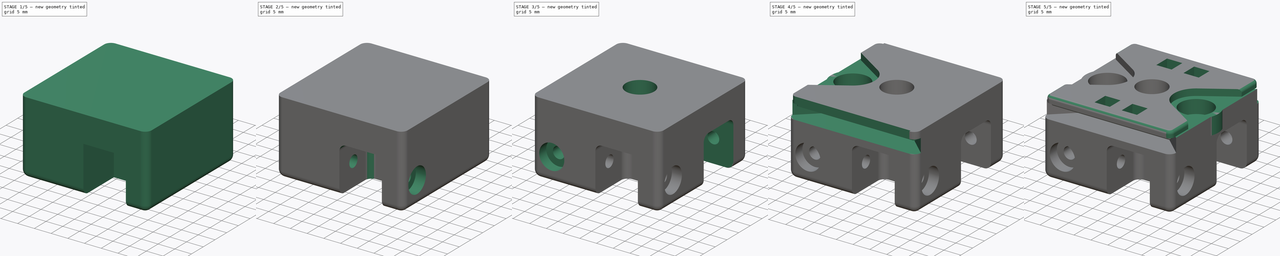
[diagram: build sequence overview — one tinted view per stage of 5, left to right]
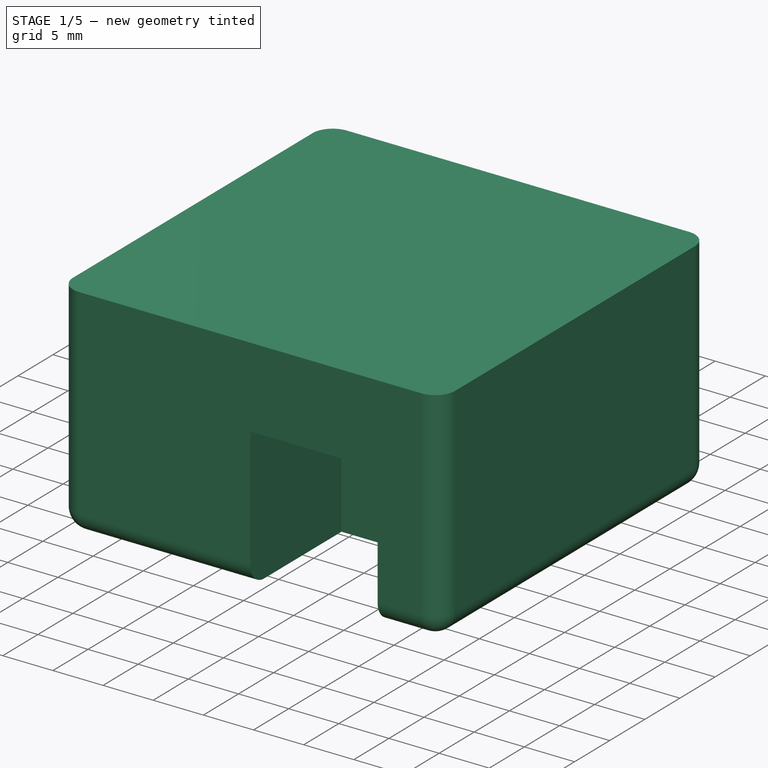
[diagram: stage 1 of 5 — iso view after this stage's code; geometry added in this stage tinted green]
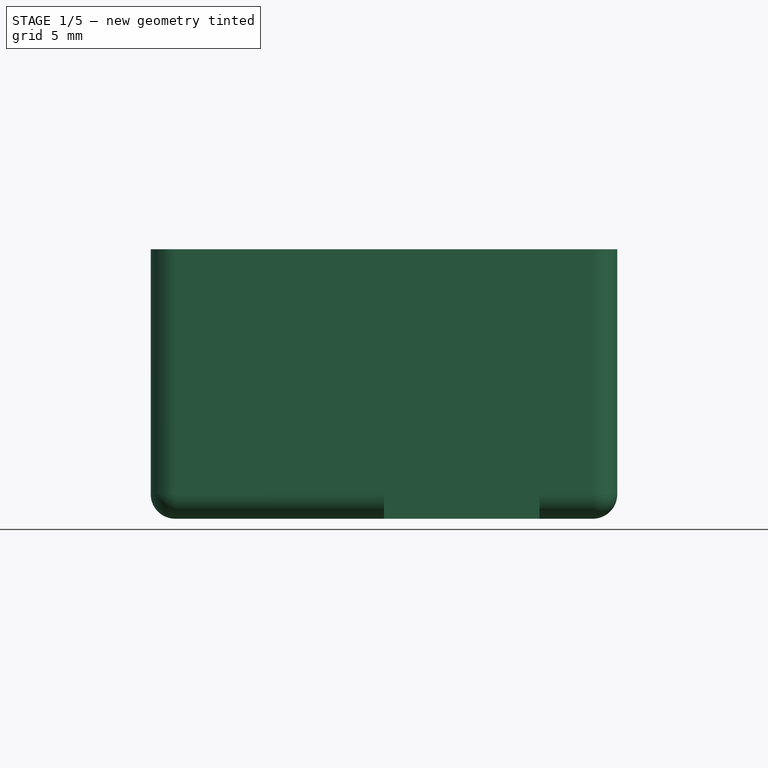
[diagram: stage 1 of 5 — front view after this stage's code; geometry added in this stage tinted green]
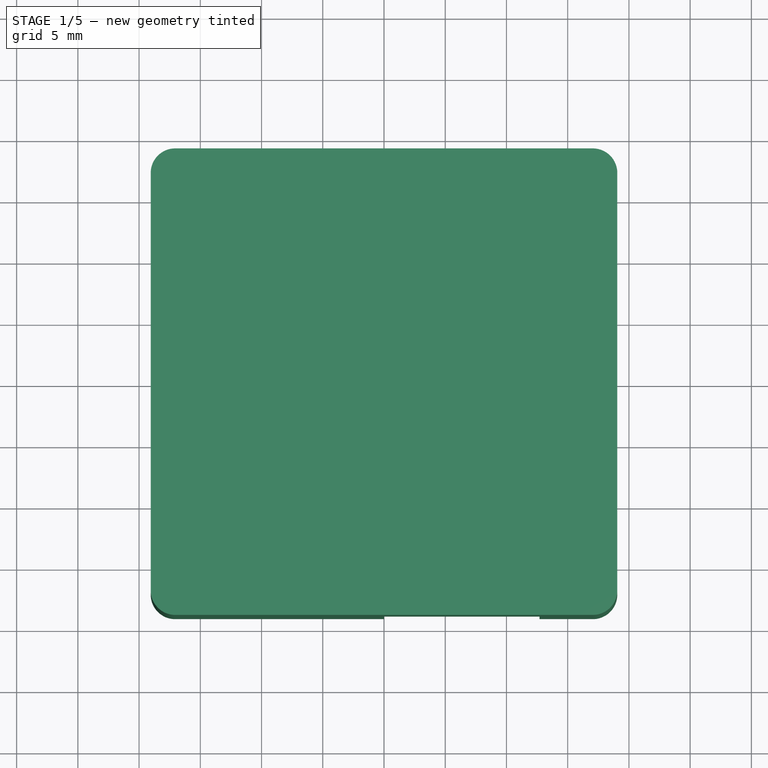
[diagram: stage 1 of 5 — top view after this stage's code; geometry added in this stage tinted green]
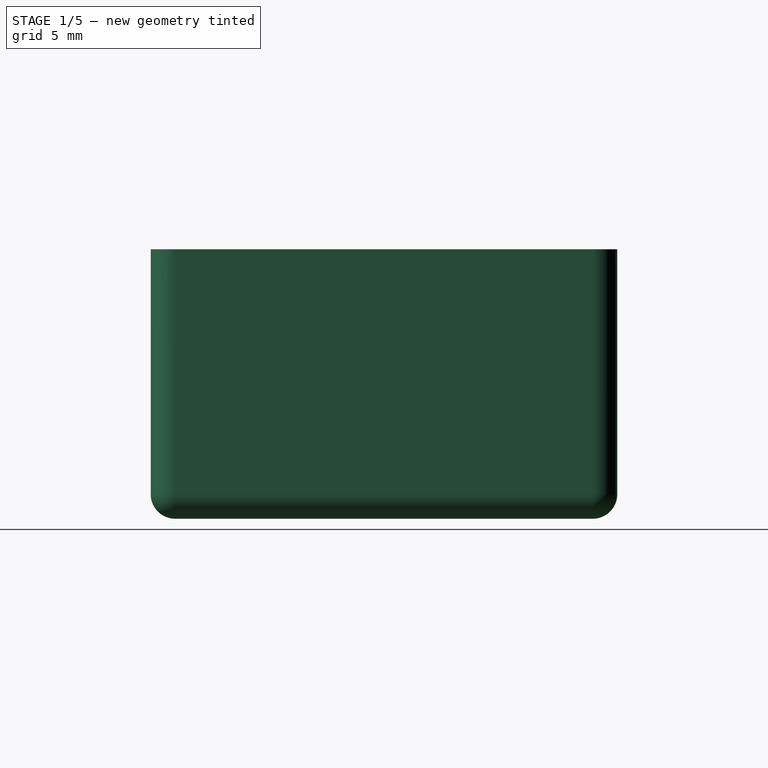
[diagram: stage 1 of 5 — right view after this stage's code; geometry added in this stage tinted green]
FCSTD DOCUMENT  (FreeCAD 1.0R39109 (Git))
Label: Block
License: All rights reserved
LicenseURL: https://en.wikipedia.org/wiki/All_rights_reserved
objects: Sketcher::SketchObject×15, PartDesign::Pocket×12, PartDesign::Fillet×5, PartDesign::Pad×3, PartDesign::PolarPattern×2, PartDesign::Plane×1, PartDesign::Body×1
note: 96 computed .brp shape members not serialized (recipe doc carries the construction recipe); baked Part::Feature solids carry a one-line shape summary decoded from their .brp

FEATURE [Sketcher::SketchObject] Sketch
  ArcFitTolerance = 1e-06
  AttachmentSupport = -> [XY_Plane]
  FullyConstrained = true
  MakeInternals = false
  MapMode = 5
  sketch-geometry (8):
    g0: LineSegment [constr] StartX=0 StartY=0 StartZ=0 EndX=0 EndY=19.05 EndZ=0
    g1: LineSegment [constr] StartX=0 StartY=0 StartZ=0 EndX=19.05 EndY=0 EndZ=0
    g2: LineSegment [constr] StartX=0 StartY=0 StartZ=0 EndX=0 EndY=-19.05 EndZ=0
    g3: LineSegment [constr] StartX=0 StartY=0 StartZ=0 EndX=-19.05 EndY=0 EndZ=0
    g4: LineSegment StartX=-19.05 StartY=19.05 StartZ=0 EndX=-19.05 EndY=-19.05 EndZ=0
    g5: LineSegment StartX=-19.05 StartY=-19.05 StartZ=0 EndX=19.05 EndY=-19.05 EndZ=0
    g6: LineSegment StartX=19.05 StartY=-19.05 StartZ=0 EndX=19.05 EndY=19.05 EndZ=0
    g7: LineSegment StartX=19.05 StartY=19.05 StartZ=0 EndX=-19.05 EndY=19.05 EndZ=0
  constraints (24):
    c: Coincident(g0,g-1)
    c: PointOnObject(g0,g-2)
    c: Coincident(g1,g0)
    c: PointOnObject(g1,g-1)
    c: Coincident(g2,g0)
    c: PointOnObject(g2,g-2)
    c: Coincident(g3,g0)
    c: PointOnObject(g3,g-1)
    c: Equal(g2,g1)
    c: Equal(g2,g3)
    c: Equal(g3,g0)
    c: Coincident(g4,g5)
    c: Coincident(g5,g6)
    c: Coincident(g6,g7)
    c: Coincident(g7,g4)
    c: Vertical(g4)
    c: Vertical(g6)
    c: Horizontal(g5)
    c: Horizontal(g7)
    c: PointOnObject(g3,g4)
    c: PointOnObject(g1,g6)
    c: PointOnObject(g0,g7)
    c: PointOnObject(g2,g5)
    c: DistanceY(g6,g6) = 38.1
FEATURE [PartDesign::Pad] Pad
  Direction = (0,0,1)
  Length = 22
  Length2 = 10
  Profile = -> Sketch
  ReferenceAxis = -> Sketch [N_Axis]
  Refine = true
  Suppressed = false
  Type = 0
FEATURE [Sketcher::SketchObject] Sketch002
  ArcFitTolerance = 1e-06
  FullyConstrained = true
  MakeInternals = false
  MapMode = 5
  Placement = pos=(19.05,0,0) rot=(0.57735,0.57735,0.57735;2.0944rad)
  sketch-geometry (1):
    g0: Circle CenterX=-13.05 CenterY=7 CenterZ=0 NormalX=0 NormalY=0 NormalZ=1 AngleXU=0 Radius=3.75
  constraints (3):
    c: Diameter(g0) = 7.5
    c: Distance(g0,g-3) = 6
    c: Distance(g0,g-4) = 7
FEATURE [Sketcher::SketchObject] Sketch004
  ArcFitTolerance = 1e-06
  AttachmentSupport = -> [Pad]
  FullyConstrained = true
  MakeInternals = false
  MapMode = 5
  Placement = pos=(0,0,0) rot=(1,0,0;3.14159rad)
  sketch-geometry (1):
    g0: Circle CenterX=0 CenterY=0 CenterZ=0 NormalX=0 NormalY=0 NormalZ=1 AngleXU=0 Radius=3.5
  constraints (2):
    c: Diameter(g0) = 7
    c: Coincident(g0,g-1)
FEATURE [PartDesign::Fillet] Fillet
  Base = -> Pad [Edge9,Edge6,Edge3,Edge11,Edge5,Edge8,Edge2,Edge1]
  BaseFeature = -> Pad
  Radius = 2
  Refine = true
  SupportTransform = false
  Suppressed = false
  UseAllEdges = false
FEATURE [PartDesign::Pocket] Pocket003
  BaseFeature = -> Fillet
  Direction = (0,0,1)
  Length = 10
  Length2 = 5
  Profile = -> Sketch004
  ReferenceAxis = -> Sketch004 [N_Axis]
  Refine = true
  Suppressed = false
  Type = 0
FEATURE [Sketcher::SketchObject] Sketch005
  ArcFitTolerance = 1e-06
  AttachmentSupport = -> [Pocket003]
  FullyConstrained = true
  MakeInternals = false
  MapMode = 5
  Placement = pos=(0,0,0) rot=(1,0,0;3.14159rad)
  sketch-geometry (4):
    g0: LineSegment StartX=0 StartY=6.05 StartZ=0 EndX=12.7 EndY=6.05 EndZ=0
    g1: LineSegment StartX=12.7 StartY=6.05 StartZ=0 EndX=12.7 EndY=19.05 EndZ=0
    g2: LineSegment StartX=12.7 StartY=19.05 StartZ=0 EndX=0 EndY=19.05 EndZ=0
    g3: LineSegment StartX=0 StartY=19.05 StartZ=0 EndX=0 EndY=6.05 EndZ=0
  constraints (12):
    c: Coincident(g0,g1)
    c: Coincident(g1,g2)
    c: Coincident(g2,g3)
    c: Coincident(g3,g0)
    c: Horizontal(g0)
    c: Horizontal(g2)
    c: Vertical(g1)
    c: Vertical(g3)
    c: Distance(g1,g3) = 12.7
    c: Distance(g0,g2) = 13
    c: PointOnObject(g0,g-2)
    c: PointOnObject(g1,g-3)
FEATURE [PartDesign::Pocket] Pocket
  BaseFeature = -> Pocket003
  Direction = (0,0,1)
  Length = 14
  Length2 = 5
  Profile = -> Sketch005
  ReferenceAxis = -> Sketch005 [N_Axis]
  Refine = true
  Suppressed = false
  Type = 0
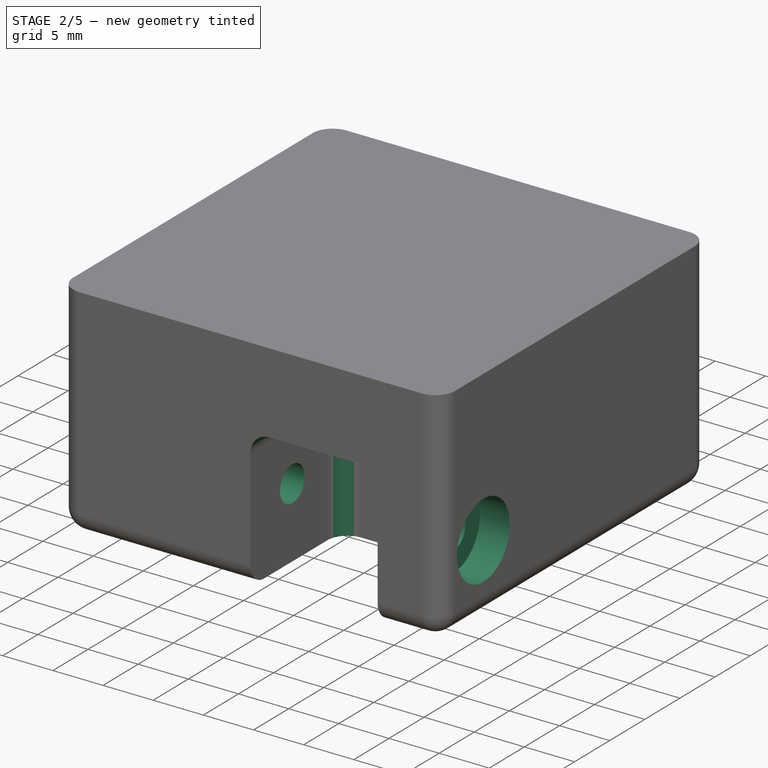
[diagram: stage 2 of 5 — iso view after this stage's code; geometry added in this stage tinted green]
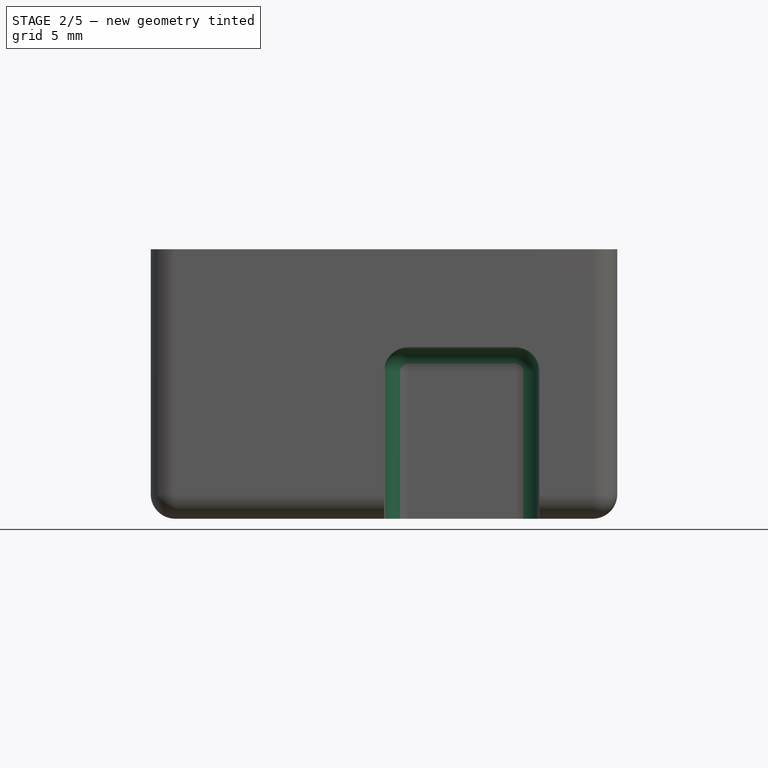
[diagram: stage 2 of 5 — front view after this stage's code; geometry added in this stage tinted green]
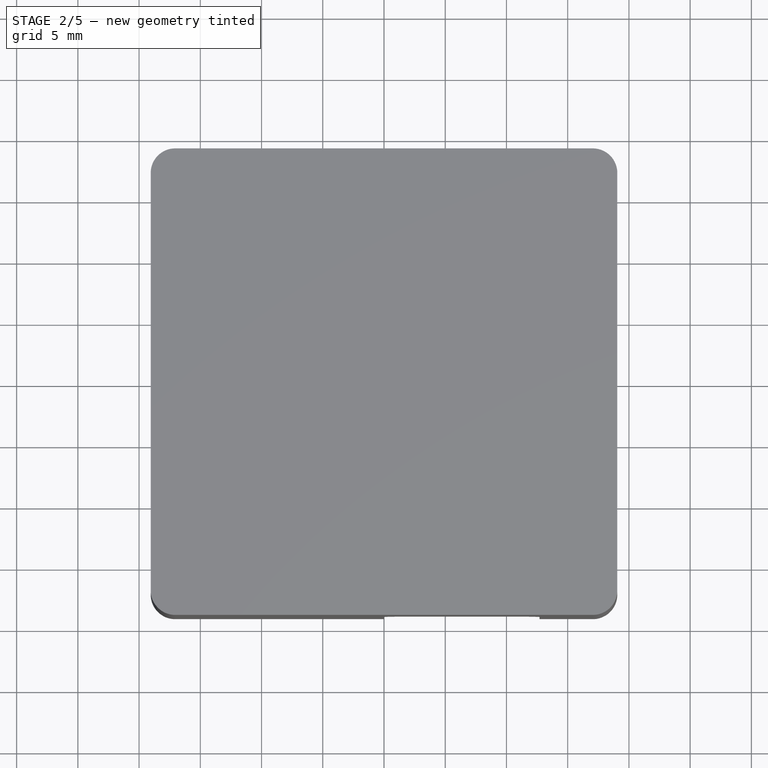
[diagram: stage 2 of 5 — top view after this stage's code; geometry added in this stage tinted green]
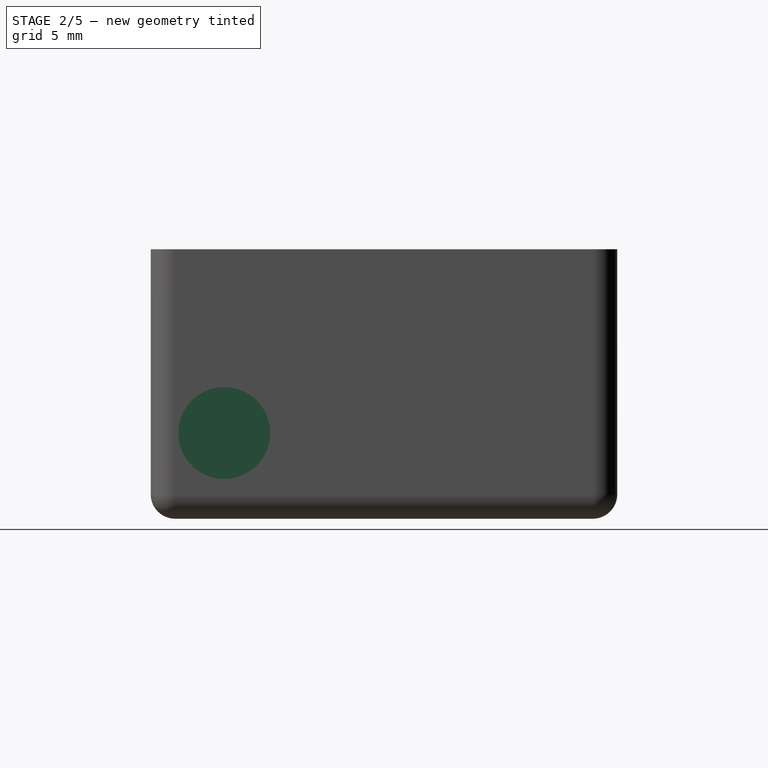
[diagram: stage 2 of 5 — right view after this stage's code; geometry added in this stage tinted green]
FEATURE [Sketcher::SketchObject] Sketch006
  ArcFitTolerance = 1e-06
  AttachmentSupport = -> [Pocket]
  ExternalGeometry = -> [Pocket]
  FullyConstrained = true
  MakeInternals = false
  MapMode = 5
  Placement = pos=(0,0,0) rot=(1,0,0;3.14159rad)
  sketch-geometry (5):
    g0: LineSegment StartX=0 StartY=3.5 StartZ=0 EndX=0 EndY=1.75 EndZ=0
    g1: LineSegment StartX=0 StartY=1.75 StartZ=0 EndX=11.825 EndY=1.75 EndZ=0
    g2: LineSegment StartX=11.825 StartY=3.5 StartZ=0 EndX=0 EndY=3.5 EndZ=0
    g3: ArcOfCircle CenterX=11.825 CenterY=2.625 CenterZ=0 NormalX=0 NormalY=0 NormalZ=1 AngleXU=0 Radius=0.875 StartAngle=4.71239 EndAngle=7.85398
    g4: LineSegment [constr] StartX=12.7 StartY=2.625 StartZ=0 EndX=12.7 EndY=6.05 EndZ=0
  constraints (13):
    c: Coincident(g0,g1)
    c: Coincident(g2,g0)
    c: Vertical(g0)
    c: Horizontal(g1)
    c: Horizontal(g2)
    c: PointOnObject(g0,g-3)
    c: DistanceY(g1,g2) = 1.75
    c: PointOnObject(g0,g-2)
    c: Tangent(g3,g2) = -1.5708
    c: Tangent(g3,g1) = -1.5708
    c: Tangent(g4,g3) = -1.5708
    c: Coincident(g4,g-4)
    c: Vertical(g4)
FEATURE [PartDesign::Pocket] Pocket004
  BaseFeature = -> Pocket
  Direction = (0,0,1)
  Length = 2
  Length2 = 5
  Profile = -> Sketch006
  ReferenceAxis = -> Sketch006 [N_Axis]
  Refine = true
  Suppressed = false
  Type = 0
FEATURE [PartDesign::Pocket] Pocket001
  BaseFeature = -> Pocket004
  Direction = (-1,0,0)
  Length = 3
  Length2 = 5
  Profile = -> Sketch002
  ReferenceAxis = -> Sketch002 [N_Axis]
  Refine = true
  Suppressed = false
  Type = 0
FEATURE [Sketcher::SketchObject] Sketch003
  ArcFitTolerance = 1e-06
  AttachmentSupport = -> [Pocket001]
  ExternalGeometry = -> [Pocket001]
  FullyConstrained = true
  MakeInternals = false
  MapMode = 5
  Placement = pos=(16.05,0,0) rot=(0.57735,0.57735,0.57735;2.0944rad)
  sketch-geometry (1):
    g0: Circle CenterX=-13.05 CenterY=7 CenterZ=0 NormalX=0 NormalY=0 NormalZ=1 AngleXU=0 Radius=1.75
  constraints (2):
    c: Diameter(g0) = 3.5
    c: Coincident(g0,g-3)
FEATURE [PartDesign::Pocket] Pocket002
  BaseFeature = -> Pocket001
  Direction = (-1,0,0)
  Length = 0
  Length2 = 5
  Offset = 5
  Profile = -> Sketch003
  ReferenceAxis = -> Sketch003 [N_Axis]
  Refine = true
  Suppressed = false
  Type = 3
  UpToFace = -> Pocket001 [Face16]
FEATURE [Sketcher::SketchObject] Sketch007
  ArcFitTolerance = 1e-06
  AttachmentSupport = -> [Pocket002]
  ExternalGeometry = -> [Pocket002]
  FullyConstrained = true
  MakeInternals = false
  MapMode = 5
  Placement = pos=(0,0,14) rot=(1,0,0;3.14159rad)
  sketch-geometry (3):
    g0: LineSegment [constr] StartX=12.7 StartY=14.8 StartZ=0 EndX=6.35 EndY=14.8 EndZ=0
    g1: LineSegment [constr] StartX=6.35 StartY=14.8 StartZ=0 EndX=0 EndY=14.8 EndZ=0
    g2: Circle CenterX=6.35002 CenterY=11.8 CenterZ=0 NormalX=0 NormalY=0 NormalZ=1 AngleXU=0 Radius=3
  constraints (9):
    c: Coincident(g0,g-3)
    c: Horizontal(g0)
    c: Coincident(g1,g0)
    c: PointOnObject(g1,g-2)
    c: Horizontal(g1)
    c: Equal(g0,g1)
    c: PointOnObject(g0,g2)
    c: Diameter(g2) = 6
    c: Tangent(g2,g1)
FEATURE [PartDesign::Pocket] Pocket005
  BaseFeature = -> Pocket002
  Direction = (0,0,1)
  Length = 1
  Length2 = 5
  Profile = -> Sketch007
  ReferenceAxis = -> Sketch007 [N_Axis]
  Refine = true
  Suppressed = false
  Type = 0
FEATURE [PartDesign::Fillet] Fillet001
  Base = -> Pocket005 [Edge54,Edge52,Edge51,Edge55,Edge57]
  BaseFeature = -> Pocket005
  Radius = 2
  Refine = true
  SupportTransform = false
  Suppressed = false
  UseAllEdges = false
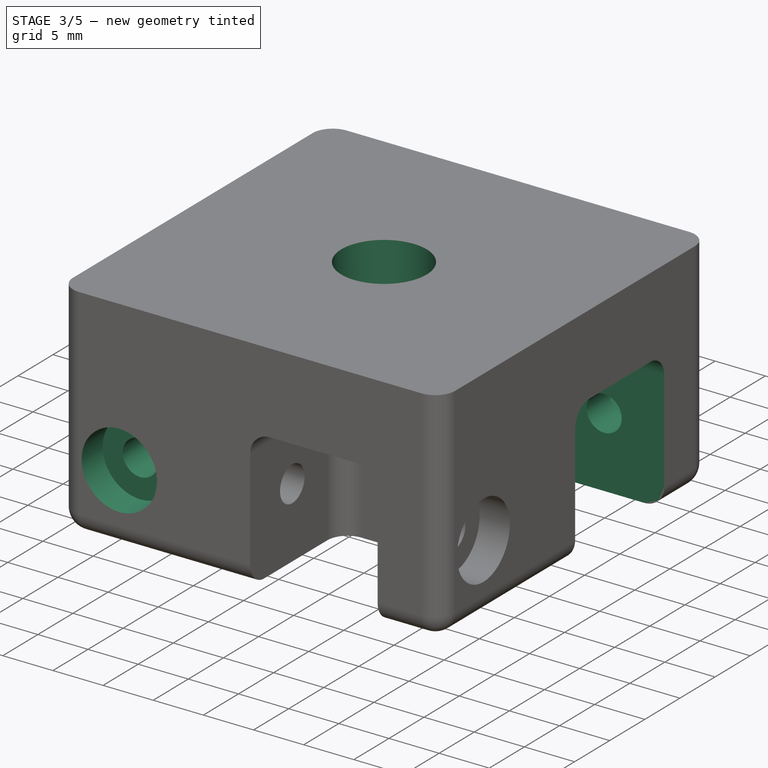
[diagram: stage 3 of 5 — iso view after this stage's code; geometry added in this stage tinted green]
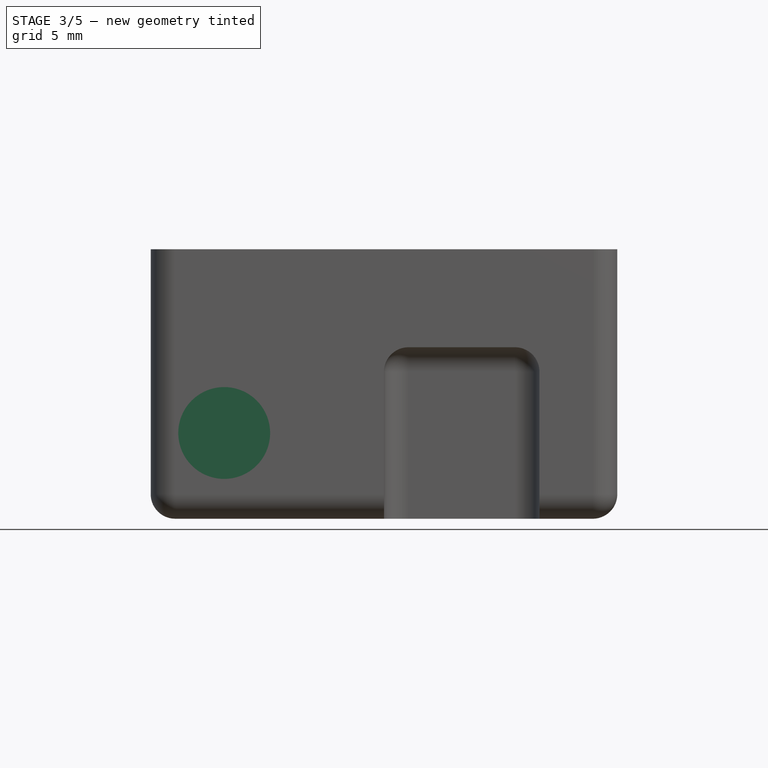
[diagram: stage 3 of 5 — front view after this stage's code; geometry added in this stage tinted green]
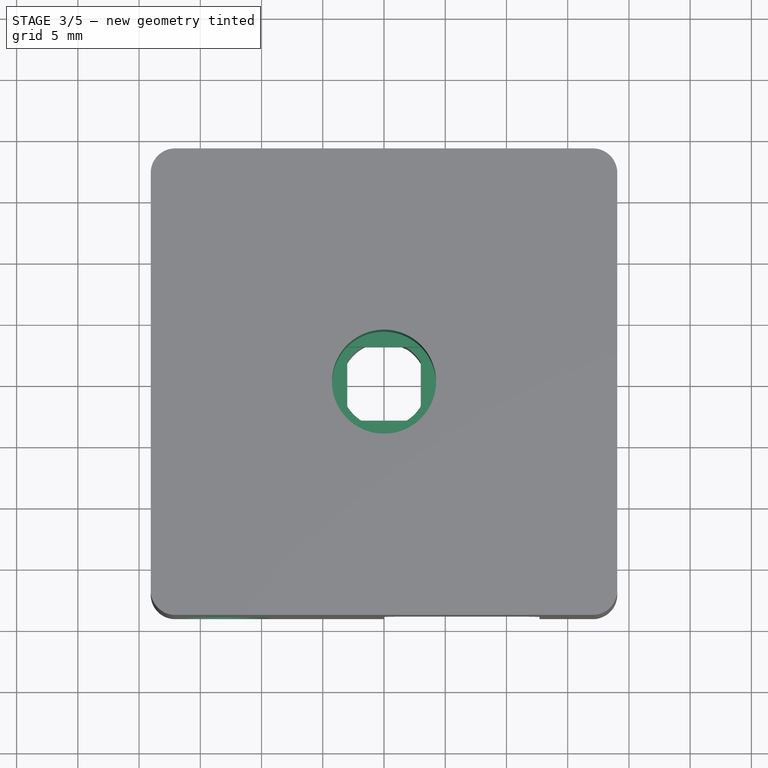
[diagram: stage 3 of 5 — top view after this stage's code; geometry added in this stage tinted green]
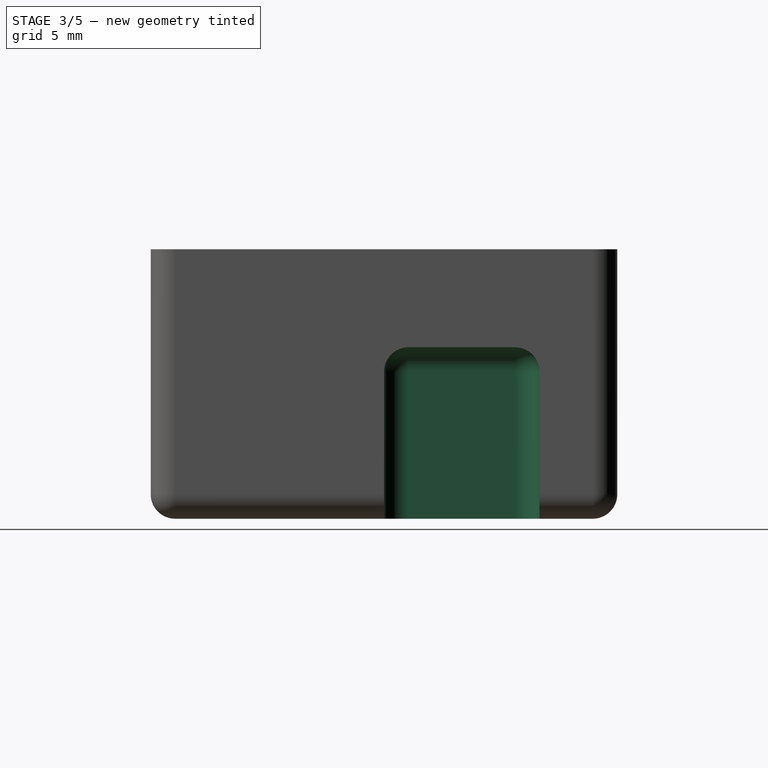
[diagram: stage 3 of 5 — right view after this stage's code; geometry added in this stage tinted green]
FEATURE [PartDesign::Fillet] Fillet002
  Base = -> Fillet001 [Edge22]
  BaseFeature = -> Fillet001
  Radius = 0.5
  Refine = true
  SupportTransform = false
  Suppressed = false
  UseAllEdges = false
FEATURE [PartDesign::PolarPattern] PolarPattern
  Angle = 360
  Axis = -> Z_Axis
  BaseFeature = -> Fillet002
  Mode = 0
  Occurrences = 4
  Offset = 120
  Originals = -> [Fillet002,Pocket,Pocket004,Pocket001,Pocket002,Pocket005,Fillet001]
  Refine = true
  Suppressed = false
  TransformMode = 0
FEATURE [Sketcher::SketchObject] Sketch009
  ArcFitTolerance = 1e-06
  AttachmentSupport = -> [PolarPattern]
  FullyConstrained = true
  MakeInternals = false
  MapMode = 5
  Placement = pos=(0,0,22) rot=(0,0,1;0rad)
  sketch-geometry (1):
    g0: Circle CenterX=0 CenterY=0 CenterZ=0 NormalX=0 NormalY=0 NormalZ=1 AngleXU=0 Radius=4.25
  constraints (2):
    c: Diameter(g0) = 8.5
    c: Coincident(g0,g-1)
FEATURE [Sketcher::SketchObject] Sketch012
  ArcFitTolerance = 1e-06
  FullyConstrained = true
  MakeInternals = false
  MapMode = 5
  Placement = pos=(0,0,22) rot=(0,0,1;0rad)
  sketch-geometry (21):
    g0: LineSegment StartX=-17.05 StartY=-18.55 StartZ=0 EndX=17.05 EndY=-18.55 EndZ=0
    g1: ArcOfCircle CenterX=-17.05 CenterY=-17.05 CenterZ=0 NormalX=0 NormalY=0 NormalZ=1 AngleXU=0 Radius=1.5 StartAngle=3.14159 EndAngle=4.71239
    g2: LineSegment [constr] StartX=-19.05 StartY=0 StartZ=0 EndX=-18.55 EndY=0 EndZ=0
    g3: LineSegment [constr] StartX=-1.1e-15 StartY=-19.05 StartZ=0 EndX=-1.1e-15 EndY=-18.55 EndZ=0
    g4: LineSegment [constr] StartX=-18.55 StartY=-17.05 StartZ=0 EndX=-19.05 EndY=-17.05 EndZ=0
    g5: LineSegment [constr] StartX=-17.05 StartY=-18.55 StartZ=0 EndX=-17.05 EndY=-19.05 EndZ=0
    g6: LineSegment [constr] StartX=-19.05 StartY=17.05 StartZ=0 EndX=-18.55 EndY=17.05 EndZ=0
    g7: ArcOfCircle CenterX=-17.05 CenterY=17.05 CenterZ=0 NormalX=0 NormalY=0 NormalZ=1 AngleXU=0 Radius=1.5 StartAngle=1.5708 EndAngle=3.14159
    g8: LineSegment StartX=-17.05 StartY=19.05 StartZ=0 EndX=-17.05 EndY=18.55 EndZ=0
    g9: ArcOfCircle CenterX=-17.05 CenterY=17.05 CenterZ=0 NormalX=0 NormalY=0 NormalZ=1 AngleXU=0 Radius=2 StartAngle=1.5708 EndAngle=3.14159
    g10: ArcOfCircle CenterX=-17.05 CenterY=-17.05 CenterZ=0 NormalX=0 NormalY=0 NormalZ=1 AngleXU=0 Radius=2 StartAngle=3.14159 EndAngle=4.71239
    g11: LineSegment StartX=-19.05 StartY=-17.05 StartZ=0 EndX=-19.05 EndY=17.05 EndZ=0
    g12: LineSegment StartX=17.05 StartY=-19.05 StartZ=0 EndX=-17.05 EndY=-19.05 EndZ=0
    g13: LineSegment StartX=17.05 StartY=-19.05 StartZ=0 EndX=17.05 EndY=-18.55 EndZ=0
    g14: LineSegment [constr] StartX=-4.25 StartY=0 StartZ=0 EndX=-6.55 EndY=0 EndZ=0
    g15: LineSegment StartX=-18.55 StartY=17.05 StartZ=0 EndX=-18.55 EndY=11.25 EndZ=0
    g16: LineSegment StartX=-18.55 StartY=-17.05 StartZ=0 EndX=-18.55 EndY=-11.25 EndZ=0
    g17: LineSegment [constr] StartX=-18.55 StartY=11.25 StartZ=0 EndX=-18.55 EndY=-11.25 EndZ=0
    g18: ArcOfCircle CenterX=-13.05 CenterY=0 CenterZ=0 NormalX=0 NormalY=0 NormalZ=1 AngleXU=0 Radius=6.5 StartAngle=5.28271 EndAngle=7.28366
    g19: LineSegment StartX=-18.55 StartY=11.25 StartZ=0 EndX=-9.54065 EndY=5.47124 EndZ=0
    g20: LineSegment StartX=-9.54065 StartY=-5.47124 StartZ=0 EndX=-18.55 EndY=-11.25 EndZ=0
  constraints (53):
    c: Horizontal(g0)
    c: Symmetric(g-3,g-3,g2)
    c: Symmetric(g6,g1,g2)
    c: Horizontal(g2)
    c: Distance(g2,g2) = 0.5
    c: Tangent(g1,g0) = -1.5708
    c: Symmetric(g-5,g-5,g3)
    c: Symmetric(g0,g0,g3)
    c: Vertical(g3)
    c: Equal(g3,g2)
    c: Coincident(g4,g-4)
    c: Coincident(g5,g0)
    c: Coincident(g5,g-5)
    c: Coincident(g6,g-6)
    c: Coincident(g7,g6) = -1.5708
    c: Coincident(g8,g-6)
    c: Coincident(g8,g7)
    c: Perpendicular(g7,g8)
    c: Coincident(g-6,g7)
    c: Coincident(g9,g7)
    c: Coincident(g9,g8)
    c: Coincident(g10,g1)
    c: Coincident(g10,g4)
    c: Coincident(g10,g5)
    c: Coincident(g11,g4)
    c: Coincident(g11,g9)
    c: Coincident(g12,g-5)
    c: Coincident(g12,g5)
    c: Coincident(g13,g12)
    c: Coincident(g13,g0)
    c: PointOnObject(g14,g-7)
    c: PointOnObject(g14,g-1)
    c: Horizontal(g14)
    c: Coincident(g15,g6)
    c: Vertical(g15)
    c: Coincident(g16,g1)
    c: Vertical(g16)
    c: Equal(g16,g15)
    c: Vertical(g5)
    c: Coincident(g17,g15)
    c: Coincident(g17,g16)
    c: DistanceY(g17,g17) = 22.5
    c: PointOnObject(g18,g-1)
    c: Coincident(g19,g15)
    c: Coincident(g20,g16)
    c: Tangent(g20,g18) = 1.5708
    c: Tangent(g19,g18) = 1.5708
    c: PointOnObject(g14,g18)
    c: Radius(g18) = 6.5
    c: Coincident(g4,g1)
    c: Horizontal(g4)
    c: PointOnObject(g9,g6)
    c: Distance(g14,g11) = 12.5
FEATURE [PartDesign::Pocket] Pocket006
  BaseFeature = -> PolarPattern
  Direction = (0,0,-1)
  Length = 10
  Length2 = 5
  Profile = -> Sketch009
  ReferenceAxis = -> Sketch009 [N_Axis]
  Refine = true
  Suppressed = false
  Type = 0
FEATURE [Sketcher::SketchObject] Sketch015
  ArcFitTolerance = 1e-06
  AttachmentSupport = -> [Pocket006]
  ExternalGeometry = -> [Pocket006]
  FullyConstrained = true
  MakeInternals = false
  MapMode = 5
  Placement = pos=(0,0,12) rot=(0,0,1;0rad)
  sketch-geometry (4):
    g0: LineSegment StartX=-3.0052 StartY=3.0052 StartZ=0 EndX=-3.0052 EndY=-3.0052 EndZ=0
    g1: LineSegment StartX=-3.0052 StartY=-3.0052 StartZ=0 EndX=3.0052 EndY=-3.0052 EndZ=0
    g2: LineSegment StartX=3.0052 StartY=-3.0052 StartZ=0 EndX=3.0052 EndY=3.0052 EndZ=0
    g3: LineSegment StartX=3.0052 StartY=3.0052 StartZ=0 EndX=-3.0052 EndY=3.0052 EndZ=0
  constraints (12):
    c: Coincident(g0,g1)
    c: Coincident(g1,g2)
    c: Coincident(g2,g3)
    c: Coincident(g3,g0)
    c: Vertical(g0)
    c: Vertical(g2)
    c: Horizontal(g1)
    c: Horizontal(g3)
    c: Equal(g0,g3)
    c: PointOnObject(g0,g-3)
    c: PointOnObject(g1,g-3)
    c: PointOnObject(g2,g-3)
FEATURE [PartDesign::Pocket] Pocket012
  BaseFeature = -> Pocket006
  Direction = (0,0,-1)
  Length = 0
  Length2 = 5
  Profile = -> Sketch015
  ReferenceAxis = -> Sketch015 [N_Axis]
  Refine = true
  Suppressed = false
  Type = 3
  UpToFace = -> Pocket006 [Face105]
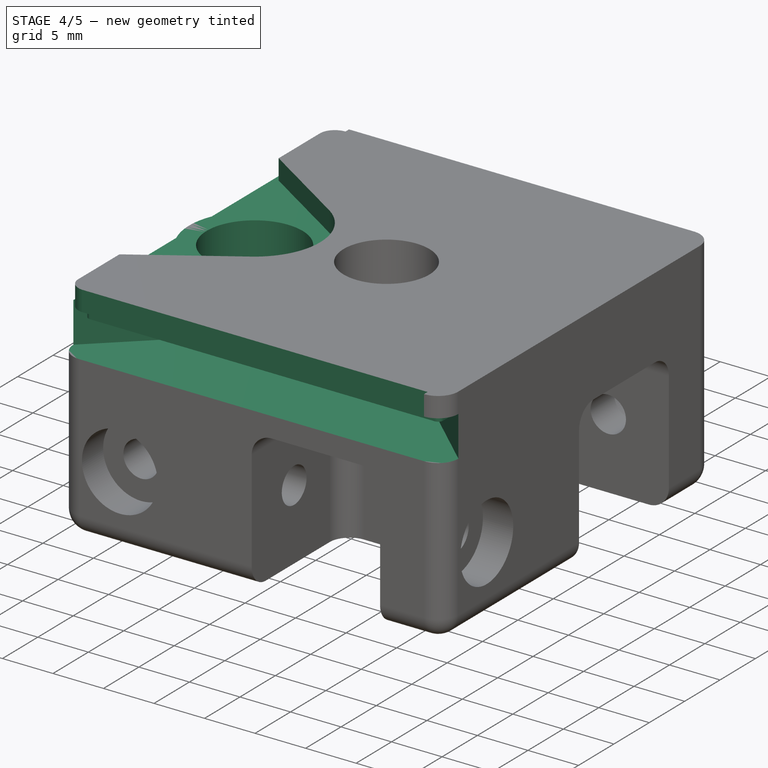
[diagram: stage 4 of 5 — iso view after this stage's code; geometry added in this stage tinted green]
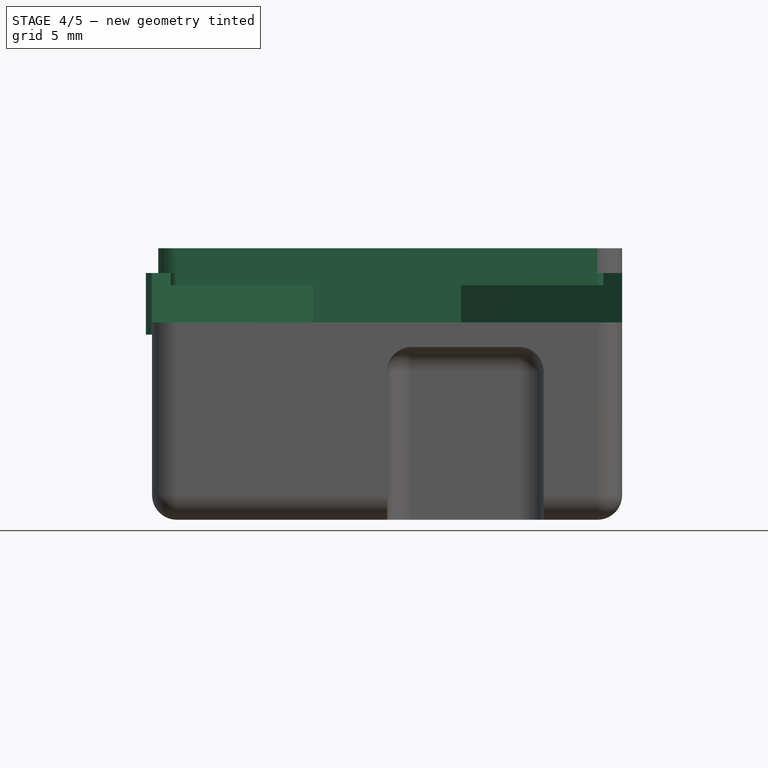
[diagram: stage 4 of 5 — front view after this stage's code; geometry added in this stage tinted green]
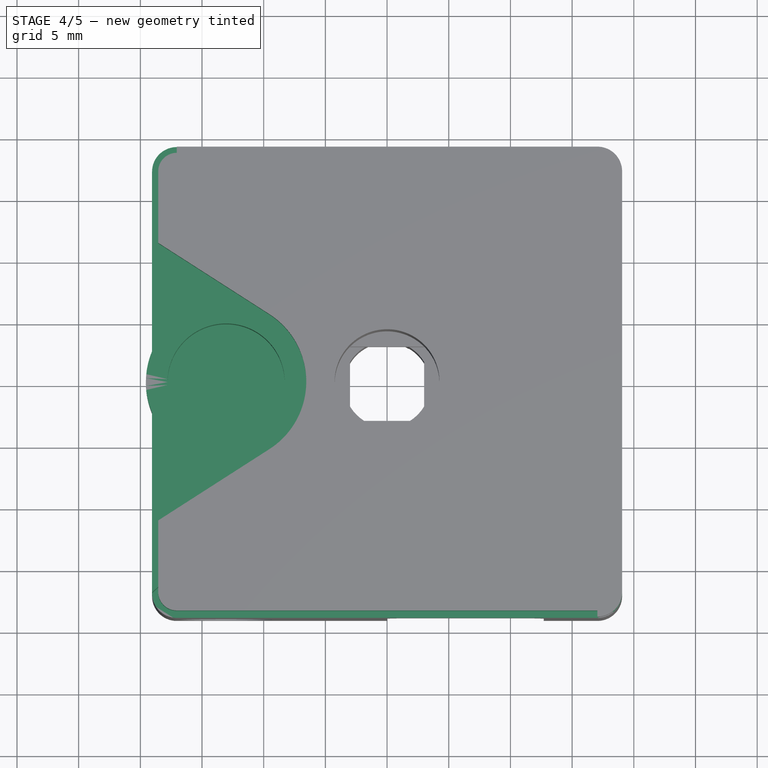
[diagram: stage 4 of 5 — top view after this stage's code; geometry added in this stage tinted green]
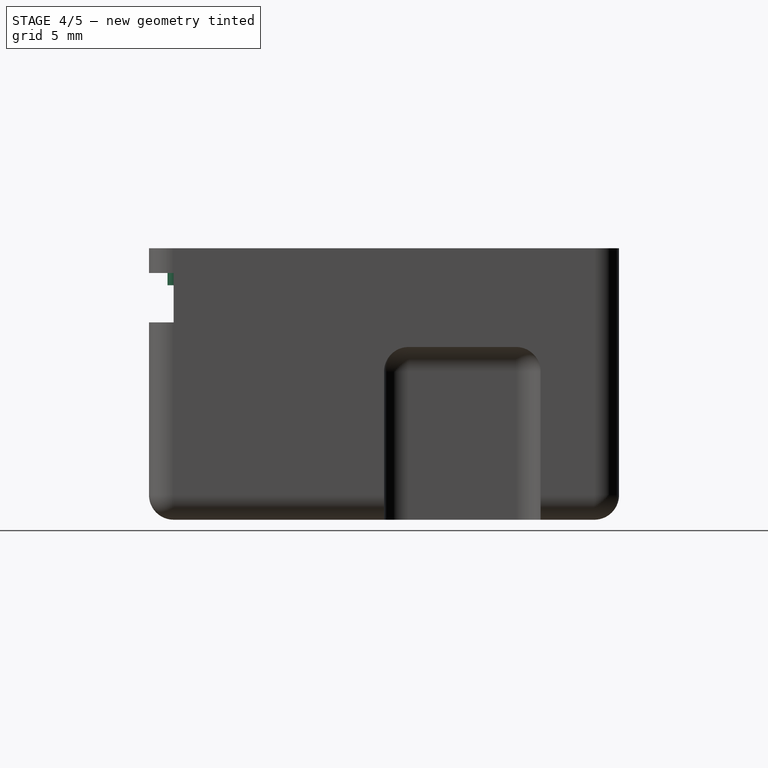
[diagram: stage 4 of 5 — right view after this stage's code; geometry added in this stage tinted green]
FEATURE [PartDesign::Plane] DatumPlane
  AttachmentOffset = pos=(0,0,6) rot=(0,0,1;0rad)
  AttachmentSupport = -> [Pocket012]
  Length = 60
  MapMode = 5
  Placement = pos=(0,0,16) rot=(0,1,0;3.14159rad)
  ResizeMode = 0
  Width = 60
FEATURE [Sketcher::SketchObject] Sketch010
  ArcFitTolerance = 1e-06
  AttachmentSupport = -> [DatumPlane]
  FullyConstrained = true
  MakeInternals = false
  MapMode = 5
  Placement = pos=(0,0,16) rot=(0,1,0;3.14159rad)
  sketch-geometry (6):
    g0: LineSegment StartX=19.05 StartY=-19.05 StartZ=0 EndX=-19.05 EndY=-19.05 EndZ=0
    g1: LineSegment StartX=6 StartY=-5.05 StartZ=0 EndX=-6 EndY=-5.05 EndZ=0
    g2: LineSegment StartX=19.05 StartY=-17.05 StartZ=0 EndX=6 EndY=-5.05 EndZ=0
    g3: LineSegment StartX=-19.05 StartY=-17.05 StartZ=0 EndX=-6 EndY=-5.05 EndZ=0
    g4: LineSegment StartX=-19.05 StartY=-17.05 StartZ=0 EndX=-19.05 EndY=-19.05 EndZ=0
    g5: LineSegment StartX=19.05 StartY=-19.05 StartZ=0 EndX=19.05 EndY=-17.05 EndZ=0
  constraints (15):
    c: Symmetric(g-3,g-3,g0)
    c: Horizontal(g0)
    c: PointOnObject(g0,g-5)
    c: Horizontal(g1)
    c: DistanceX(g1,g1) = 12
    c: Coincident(g2,g-7)
    c: Coincident(g2,g1)
    c: Coincident(g3,g-6)
    c: Coincident(g3,g1)
    c: Coincident(g4,g3)
    c: Coincident(g4,g0)
    c: Coincident(g5,g0)
    c: Coincident(g5,g2)
    c: Equal(g2,g3)
    c: Distance(g1,g0) = 14
FEATURE [PartDesign::Pocket] Pocket008
  BaseFeature = -> Pocket012
  Direction = (0,0,1)
  Length = 4
  Length2 = 5
  Profile = -> Sketch010
  ReferenceAxis = -> Sketch010 [N_Axis]
  Refine = true
  Suppressed = false
  Type = 0
FEATURE [Sketcher::SketchObject] Sketch011
  ArcFitTolerance = 1e-06
  AttachmentSupport = -> [Pocket008]
  FullyConstrained = true
  MakeInternals = false
  MapMode = 5
  Placement = pos=(0,0,22) rot=(0,0,1;0rad)
  sketch-geometry (9):
    g0: LineSegment StartX=-6.25 StartY=-10.75 StartZ=0 EndX=-6.25 EndY=-15.25 EndZ=0
    g1: LineSegment StartX=-6.25 StartY=-15.25 StartZ=0 EndX=-1.75 EndY=-15.25 EndZ=0
    g2: LineSegment StartX=-1.75 StartY=-15.25 StartZ=0 EndX=-1.75 EndY=-10.75 EndZ=0
    g3: LineSegment StartX=-1.75 StartY=-10.75 StartZ=0 EndX=-6.25 EndY=-10.75 EndZ=0
    g4: LineSegment StartX=1.75 StartY=-10.75 StartZ=0 EndX=1.75 EndY=-15.25 EndZ=0
    g5: LineSegment StartX=1.75 StartY=-15.25 StartZ=0 EndX=6.25 EndY=-15.25 EndZ=0
    g6: LineSegment StartX=6.25 StartY=-15.25 StartZ=0 EndX=6.25 EndY=-10.75 EndZ=0
    g7: LineSegment StartX=6.25 StartY=-10.75 StartZ=0 EndX=1.75 EndY=-10.75 EndZ=0
    g8: LineSegment [constr] StartX=-1.75 StartY=-15.25 StartZ=0 EndX=1.75 EndY=-15.25 EndZ=0
  constraints (25):
    c: Coincident(g0,g1)
    c: Coincident(g1,g2)
    c: Coincident(g2,g3)
    c: Coincident(g3,g0)
    c: Vertical(g0)
    c: Vertical(g2)
    c: Horizontal(g1)
    c: Horizontal(g3)
    c: Equal(g3,g0)
    c: Coincident(g4,g5)
    c: Coincident(g5,g6)
    c: Coincident(g6,g7)
    c: Coincident(g7,g4)
    c: Vertical(g4)
    c: Vertical(g6)
    c: Horizontal(g5)
    c: Horizontal(g7)
    c: Coincident(g8,g1)
    c: Coincident(g8,g4)
    c: Symmetric(g1,g4,g-2)
    c: Equal(g3,g7)
    c: Equal(g4,g2)
    c: DistanceX(g1,g1) = 4.5
    c: DistanceX(g8,g8) = 3.5
    c: Distance(g-1,g7) = 10.75
FEATURE [PartDesign::Pocket] Pocket010
  BaseFeature = -> Pocket008
  Direction = (0,0,-1)
  Length = 2
  Length2 = 5
  Profile = -> Sketch012
  ReferenceAxis = -> Sketch012 [N_Axis]
  Refine = true
  Suppressed = false
  Type = 0
FEATURE [Sketcher::SketchObject] Sketch013
  ArcFitTolerance = 1e-06
  AttachmentSupport = -> [Pocket010]
  ExternalGeometry = -> [Pocket010]
  FullyConstrained = true
  MakeInternals = false
  MapMode = 5
  Placement = pos=(0,0,20) rot=(0,0,1;0rad)
  sketch-geometry (1):
    g0: Circle CenterX=-13.05 CenterY=0 CenterZ=0 NormalX=0 NormalY=0 NormalZ=1 AngleXU=0 Radius=4.75
  constraints (2):
    c: Diameter(g0) = 9.5
    c: Coincident(g0,g-3)
FEATURE [PartDesign::Pocket] Pocket011
  BaseFeature = -> Pocket010
  Direction = (0,0,-1)
  Length = 4
  Length2 = 5
  Profile = -> Sketch013
  ReferenceAxis = -> Sketch013 [N_Axis]
  Refine = true
  Suppressed = false
  Type = 0
FEATURE [Sketcher::SketchObject] Sketch014
  ArcFitTolerance = 1e-06
  AttachmentSupport = -> [Pocket011]
  ExternalGeometry = -> [Pocket011]
  FullyConstrained = true
  MakeInternals = false
  MapMode = 5
  Placement = pos=(0,0,20) rot=(0,0,1;0rad)
  sketch-geometry (2):
    g0: Circle CenterX=-13.05 CenterY=0 CenterZ=0 NormalX=0 NormalY=0 NormalZ=1 AngleXU=0 Radius=4.75
    g1: Circle CenterX=-13.05 CenterY=0 CenterZ=0 NormalX=0 NormalY=0 NormalZ=1 AngleXU=0 Radius=6.5
  constraints (4):
    c: Coincident(g0,g-3)
    c: Equal(g0,g-3)
    c: Coincident(g1,g0)
    c: PointOnObject(g-4,g1)
FEATURE [PartDesign::Pad] Pad001
  BaseFeature = -> Pocket011
  Direction = (0,0,1)
  Length = 5
  Length2 = 10
  Profile = -> Sketch014
  ReferenceAxis = -> Sketch014 [N_Axis]
  Refine = true
  Reversed = true
  Suppressed = false
  Type = 0
FEATURE [Sketcher::SketchObject] Sketch016
  ArcFitTolerance = 1e-06
  AttachmentSupport = -> [Pad001]
  ExternalGeometry = -> [Pad001]
  FullyConstrained = true
  MakeInternals = false
  MapMode = 5
  Placement = pos=(0,0,20) rot=(1,0,0;3.14159rad)
  sketch-geometry (12):
    g0: LineSegment StartX=6 StartY=5.05 StartZ=0 EndX=-6 EndY=5.05 EndZ=0
    g1: LineSegment [constr] StartX=-18.55 StartY=16.5902 StartZ=0 EndX=-17.55 EndY=15.6707 EndZ=0
    g2: LineSegment StartX=-6 StartY=5.05 StartZ=0 EndX=-17.55 EndY=15.6707 EndZ=0
    g3: LineSegment StartX=-17.55 StartY=15.6707 StartZ=0 EndX=-17.55 EndY=17.05 EndZ=0
    g4: ArcOfCircle CenterX=-17.05 CenterY=17.05 CenterZ=0 NormalX=0 NormalY=0 NormalZ=1 AngleXU=0 Radius=0.5 StartAngle=1.5708 EndAngle=3.14159
    g5: LineSegment [constr] StartX=-17.05 StartY=18.55 StartZ=0 EndX=-17.05 EndY=17.55 EndZ=0
    g6: LineSegment [constr] StartX=-18.55 StartY=17.05 StartZ=0 EndX=-17.55 EndY=17.05 EndZ=0
    g7: LineSegment StartX=-17.05 StartY=17.55 StartZ=0 EndX=0 EndY=17.55 EndZ=0
    g8: LineSegment StartX=0 StartY=17.55 StartZ=0 EndX=17.05 EndY=17.55 EndZ=0
    g9: ArcOfCircle CenterX=17.05 CenterY=17.05 CenterZ=0 NormalX=0 NormalY=0 NormalZ=1 AngleXU=0 Radius=0.5 StartAngle=6e-16 EndAngle=1.5708
    g10: LineSegment StartX=17.55 StartY=17.05 StartZ=0 EndX=17.55 EndY=15.6707 EndZ=0
    g11: LineSegment StartX=17.55 StartY=15.6707 StartZ=0 EndX=6 EndY=5.05 EndZ=0
  constraints (32):
    c: PointOnObject(g0,g-4)
    c: PointOnObject(g0,g-3)
    c: Horizontal(g0)
    c: Coincident(g1,g-7)
    c: PointOnObject(g1,g-3)
    c: Coincident(g2,g1)
    c: Coincident(g3,g1)
    c: Vertical(g3)
    c: Coincident(g5,g-8)
    c: Coincident(g5,g4)
    c: Vertical(g5)
    c: DistanceY(g5,g5) = 1
    c: Tangent(g3,g4) = 1.5708
    c: Coincident(g6,g-7)
    c: Horizontal(g6)
    c: Coincident(g6,g3)
    c: Equal(g5,g6)
    c: Coincident(g0,g2)
    c: PointOnObject(g0,g-5)
    c: Tangent(g7,g4) = 1.5708
    c: PointOnObject(g7,g-2)
    c: Horizontal(g7)
    c: Coincident(g8,g7)
    c: Horizontal(g8)
    c: Equal(g8,g7)
    c: Tangent(g9,g8) = 1.5708
    c: Equal(g9,g4)
    c: PointOnObject(g10,g-5)
    c: Vertical(g10)
    c: Tangent(g10,g9) = 1.5708
    c: Coincident(g11,g10)
    c: Coincident(g11,g0)
FEATURE [PartDesign::Pad] Pad002
  BaseFeature = -> Pad001
  Direction = (0,0,-1)
  Length = 1
  Length2 = 10
  Profile = -> Sketch016
  ReferenceAxis = -> Sketch016 [N_Axis]
  Refine = true
  Suppressed = false
  Type = 0
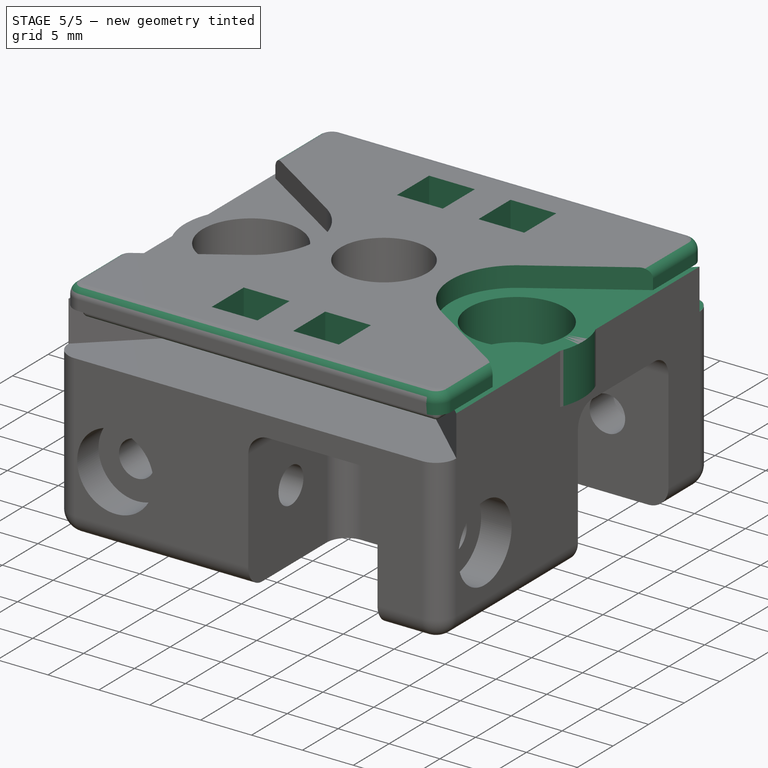
[diagram: stage 5 of 5 — iso view after this stage's code; geometry added in this stage tinted green]
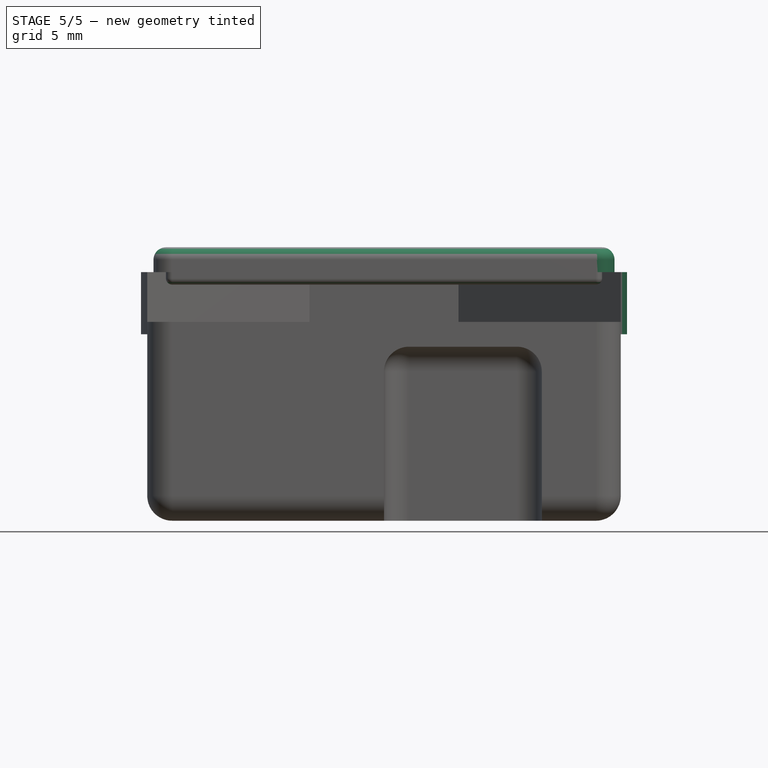
[diagram: stage 5 of 5 — front view after this stage's code; geometry added in this stage tinted green]
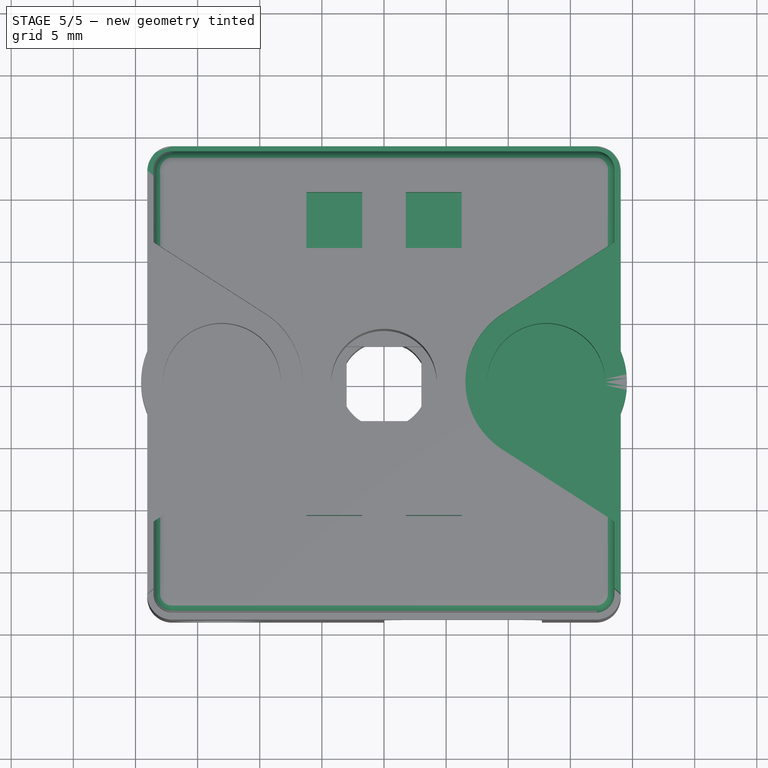
[diagram: stage 5 of 5 — top view after this stage's code; geometry added in this stage tinted green]
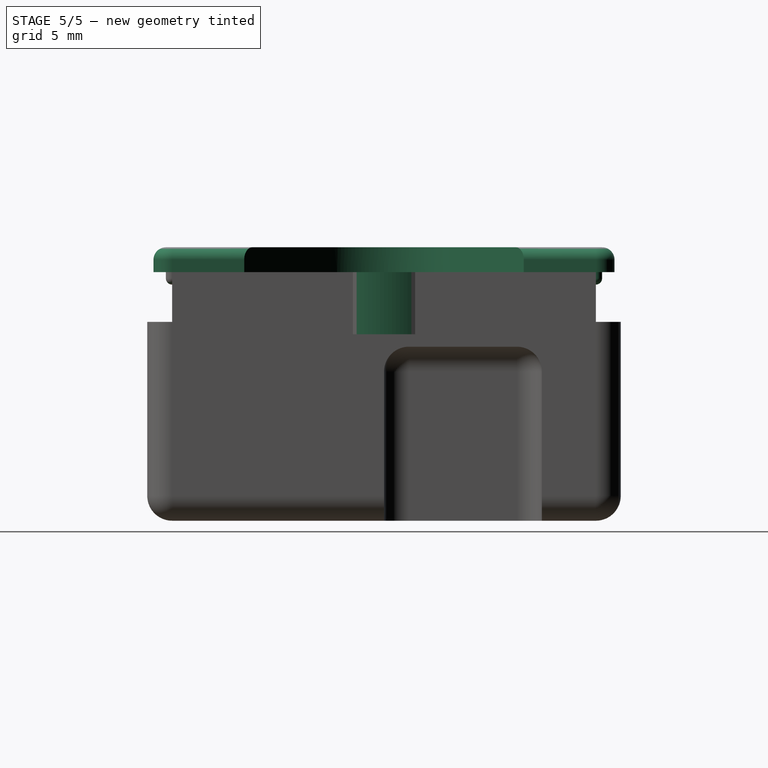
[diagram: stage 5 of 5 — right view after this stage's code; geometry added in this stage tinted green]
FEATURE [PartDesign::Pocket] Pocket013
  BaseFeature = -> Pad002
  Direction = (0,0,-1)
  Length = 5
  Length2 = 5
  Profile = -> Sketch011
  ReferenceAxis = -> Sketch011 [N_Axis]
  Refine = true
  Suppressed = false
  Type = 2
FEATURE [PartDesign::PolarPattern] PolarPattern001
  Angle = 360
  Axis = -> Sketch010 [N_Axis]
  BaseFeature = -> Pocket013
  Mode = 0
  Occurrences = 2
  Offset = 120
  Originals = -> [Pocket008,Pocket010,Pocket011,Pad001,Pad002,Pocket013]
  Refine = true
  Suppressed = false
  TransformMode = 0
FEATURE [PartDesign::Fillet] Fillet003
  Base = -> PolarPattern001 [Edge457,Edge349,Edge459,Edge460,Edge396,Edge385,Edge387,Edge388,Edge382,Edge6]
  BaseFeature = -> PolarPattern001
  Radius = 1
  Refine = true
  SupportTransform = false
  Suppressed = false
  UseAllEdges = false
FEATURE [PartDesign::Fillet] Fillet004
  Base = -> Fillet003 [Edge231,Edge229,Edge233,Edge230,Edge232,Edge163,Edge165,Edge166,Edge171,Edge169]
  BaseFeature = -> Fillet003
  Radius = 0.5
  Refine = true
  SupportTransform = false
  Suppressed = false
  UseAllEdges = false
FEATURE [PartDesign::Body] Body
  AllowCompound = false
  Group = -> [Sketch,Pad,Sketch004,Fillet,Pocket003,Sketch002,Sketch005,Pocket,Sketch006,Pocket004,Pocket001,Sketch003,Pocket002,Sketch007,Pocket005,Fillet001,Fillet002,PolarPattern,Sketch009,Pocket006,Sketch010,Sketch015,Pocket012,DatumPlane,Pocket008,Sketch012,Pocket010,Sketch013,Pocket011,Sketch014,Pad001,Sketch016,Pad002,Sketch011,Pocket013,PolarPattern001,Fillet003,Fillet004]
  Origin = -> Origin
  Tip = -> Fillet004
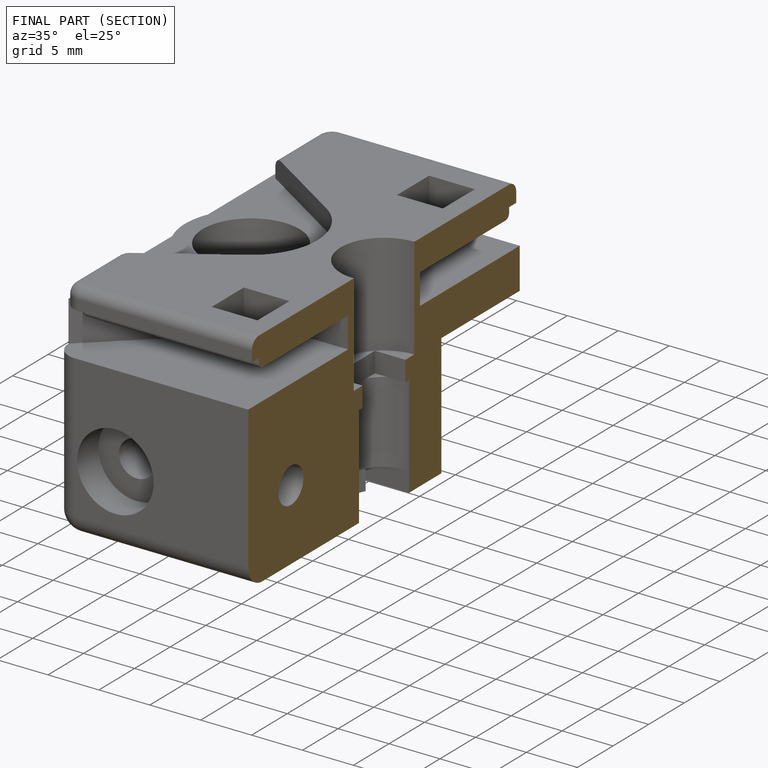
[diagram: finished part — half-section view (interior)]
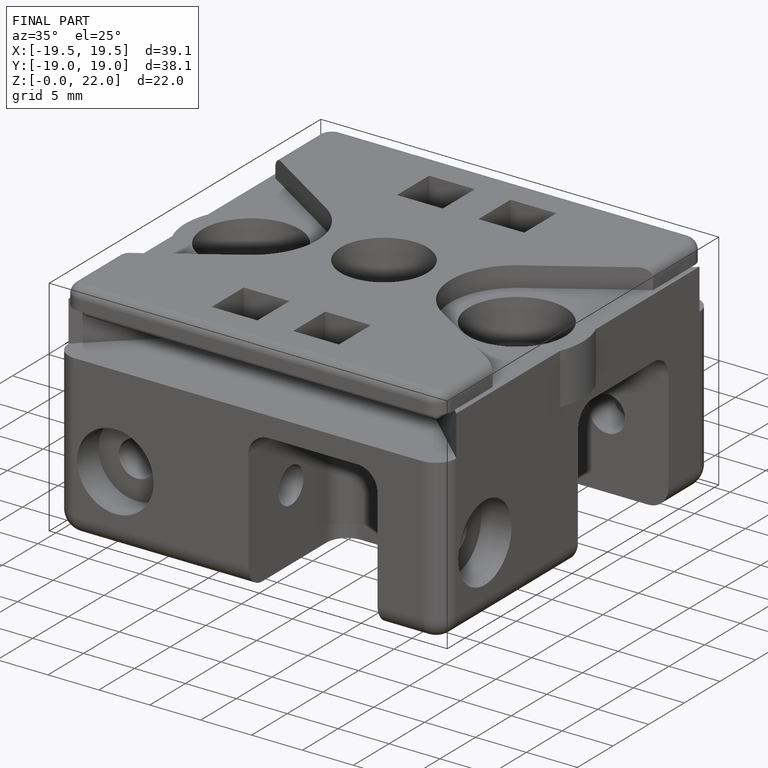
[diagram: finished part — iso view with bounding-box wireframe]
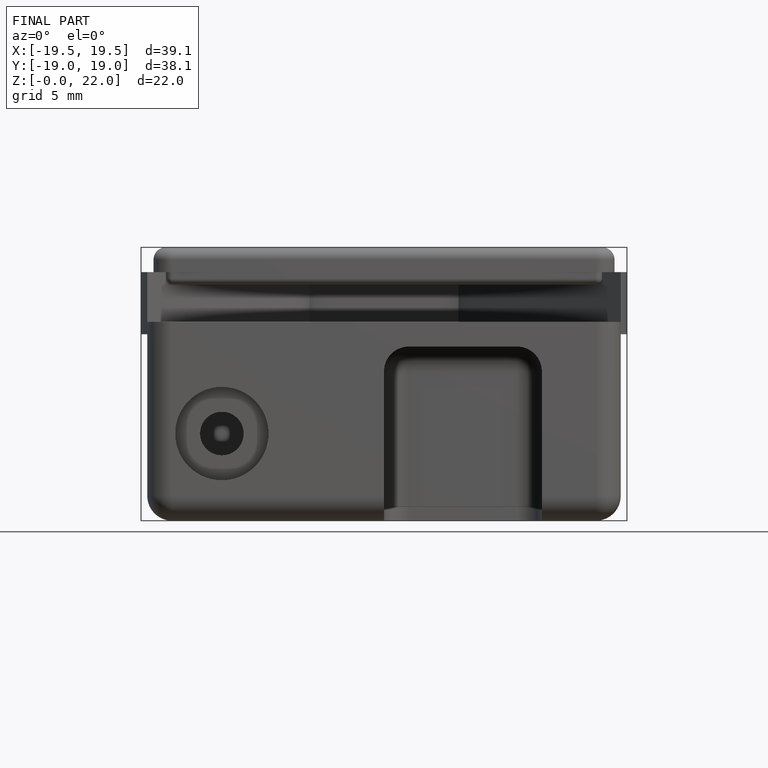
[diagram: finished part — front view with bounding-box wireframe]
